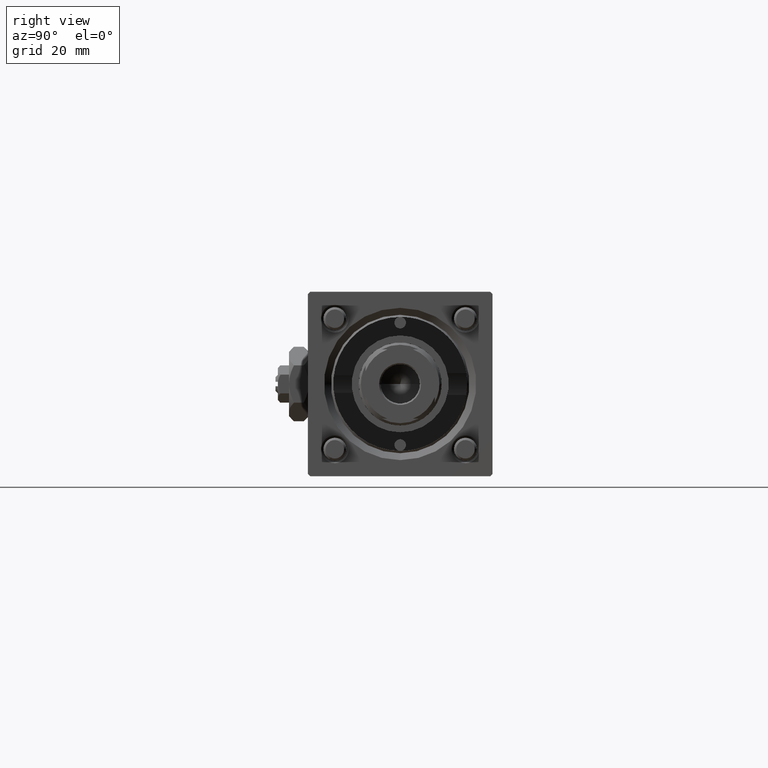
[diagram: clean part render]
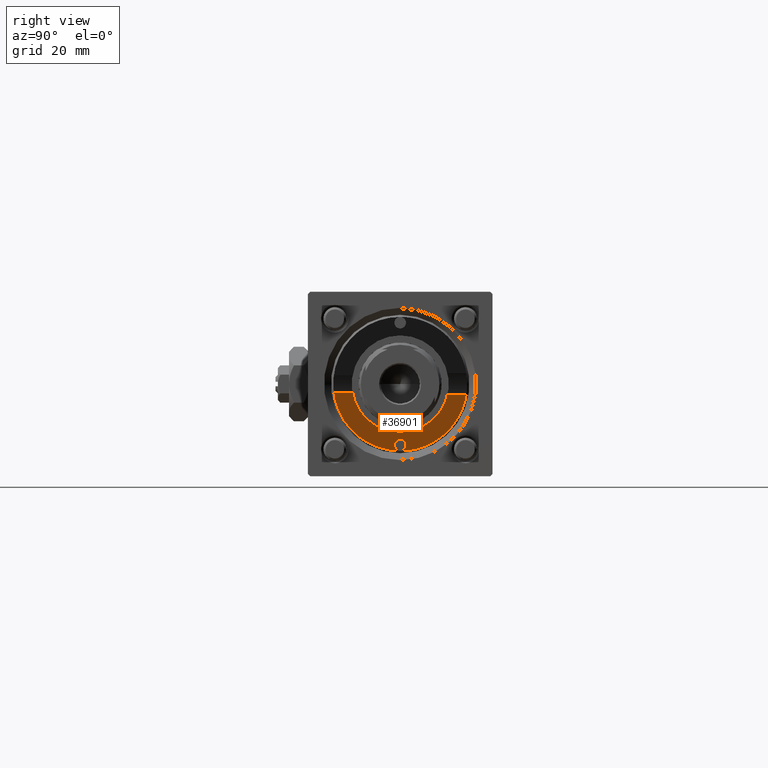
[diagram: same view with one face highlighted and labeled with its STEP entity id]
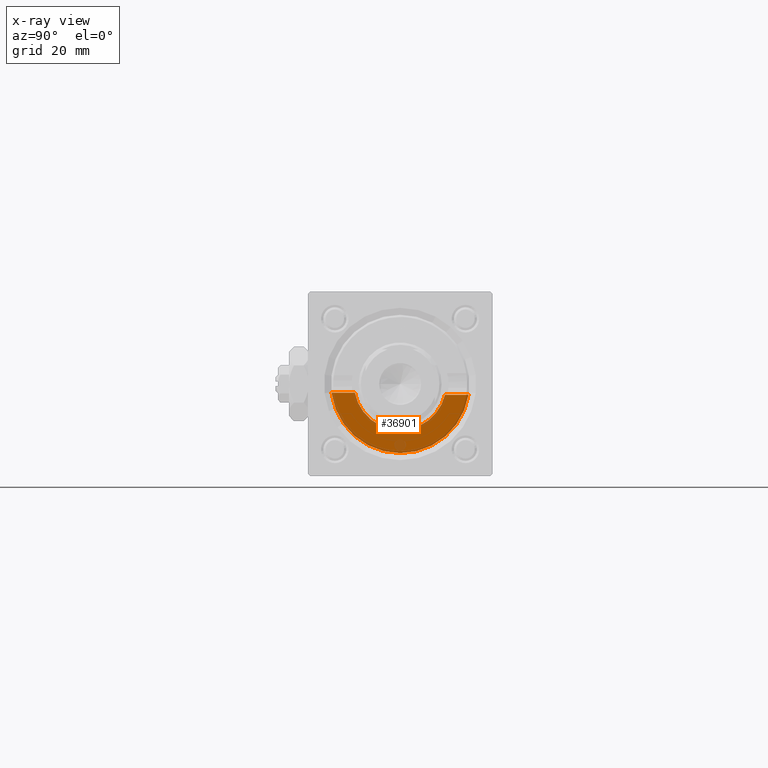
[diagram: x-ray of the same camera — body ghosted, the highlighted face saturated]
A machine part, right view. The second image highlights one B-rep face of the part: STEP entity #36901.
The next image is the same camera in x-ray: the body ghosted, the highlighted face saturated — about 21% of this face is hidden behind the body in this view.
In plain terms, the highlighted planar face has unit normal (1, 0, 0).
Its self-contained STEP definition (entity closure, byte-faithful):
#2122 = CIRCLE ( 'NONE', #49639, 15.00000000000000000 ) ;
#2288 = CARTESIAN_POINT ( 'NONE',  ( 90.30000000000001137, 2.199999999999997069, -2.365755693219425027 ) ) ;
#2880 = LINE ( 'NONE', #2288, #45791 ) ;
#3271 = EDGE_CURVE ( 'NONE', #16774, #41944, #7169, .T. ) ;
#3438 = VECTOR ( 'NONE', #6840, 1000.000000000000000 ) ;
#4565 = EDGE_CURVE ( 'NONE', #54863, #21522, #53232, .T. ) ;
#6481 = AXIS2_PLACEMENT_3D ( 'NONE', #38109, #56251, #52655 ) ;
#6840 = DIRECTION ( 'NONE',  ( 0.000000000000000000, 1.000000000000000000, 8.673617379884037937E-17 ) ) ;
#7005 = DIRECTION ( 'NONE',  ( 1.000000000000000000, 0.000000000000000000, 0.000000000000000000 ) ) ;
#7169 = CIRCLE ( 'NONE', #20484, 9.999999999999998224 ) ;
#7710 = CARTESIAN_POINT ( 'NONE',  ( 90.30000000000001137, 20.00100000000008293, -1.899052395275078631 ) ) ;
#9799 = EDGE_LOOP ( 'NONE', ( #22699, #46492, #41576, #19982, #32456, #21516 ) ) ;
#10385 = DIRECTION ( 'NONE',  ( 0.000000000000000000, 0.000000000000000000, -1.000000000000000000 ) ) ;
#11512 = DIRECTION ( 'NONE',  ( -0.000000000000000000, 1.000000000000000000, -0.000000000000000000 ) ) ;
#13664 = CARTESIAN_POINT ( 'NONE',  ( 90.30000000000001137, 0.000000000000000000, 0.000000000000000000 ) ) ;
#15240 = VERTEX_POINT ( 'NONE', #19941 ) ;
#16517 = AXIS2_PLACEMENT_3D ( 'NONE', #13664, #41336, #10385 ) ;
#16774 = VERTEX_POINT ( 'NONE', #40011 ) ;
#16815 = FACE_OUTER_BOUND ( 'NONE', #9799, .T. ) ;
#19312 = EDGE_CURVE ( 'NONE', #41944, #15240, #2880, .T. ) ;
#19941 = CARTESIAN_POINT ( 'NONE',  ( 90.30000000000001137, 14.81226518801226000, -2.365755693219425027 ) ) ;
#19982 = ORIENTED_EDGE ( 'NONE', *, *, #19312, .F. ) ;
#20484 = AXIS2_PLACEMENT_3D ( 'NONE', #43566, #21255, #34951 ) ;
#21011 = CARTESIAN_POINT ( 'NONE',  ( 90.30000000000001137, 0.000000000000000000, 0.000000000000000000 ) ) ;
#21255 = DIRECTION ( 'NONE',  ( 1.000000000000000000, 0.000000000000000000, 0.000000000000000000 ) ) ;
#21298 = DIRECTION ( 'NONE',  ( 1.000000000000000000, 0.000000000000000000, 0.000000000000000000 ) ) ;
#21516 = ORIENTED_EDGE ( 'NONE', *, *, #30880, .F. ) ;
#21522 = VERTEX_POINT ( 'NONE', #32709 ) ;
#22699 = ORIENTED_EDGE ( 'NONE', *, *, #4565, .F. ) ;
#26559 = EDGE_CURVE ( 'NONE', #54863, #39514, #2122, .T. ) ;
#29840 = CIRCLE ( 'NONE', #16517, 9.999999999999998224 ) ;
#30880 = EDGE_CURVE ( 'NONE', #21522, #16774, #29840, .T. ) ;
#31006 = AXIS2_PLACEMENT_3D ( 'NONE', #34401, #7005, #34987 ) ;
#32456 = ORIENTED_EDGE ( 'NONE', *, *, #3271, .F. ) ;
#32709 = CARTESIAN_POINT ( 'NONE',  ( 90.30000000000001137, -9.818024241159720944, -1.899052395275081295 ) ) ;
#33122 = CARTESIAN_POINT ( 'NONE',  ( 90.30000000000001137, -14.87930105885353349, -1.899052395275081073 ) ) ;
#34401 = CARTESIAN_POINT ( 'NONE',  ( 90.30000000000001137, 0.000000000000000000, 0.000000000000000000 ) ) ;
#34951 = DIRECTION ( 'NONE',  ( 0.000000000000000000, 0.000000000000000000, -1.000000000000000000 ) ) ;
#34987 = DIRECTION ( 'NONE',  ( 0.000000000000000000, 0.000000000000000000, -1.000000000000000000 ) ) ;
#36901 = ADVANCED_FACE ( 'NONE', ( #16815 ), #47491, .T. ) ;
#38109 = CARTESIAN_POINT ( 'NONE',  ( 90.30000000000001137, 0.000000000000000000, 0.000000000000000000 ) ) ;
#39514 = VERTEX_POINT ( 'NONE', #52102 ) ;
#40011 = CARTESIAN_POINT ( 'NONE',  ( 90.30000000000001137, 0.000000000000000000, -9.999999999999998224 ) ) ;
#41336 = DIRECTION ( 'NONE',  ( 1.000000000000000000, 0.000000000000000000, 0.000000000000000000 ) ) ;
#41576 = ORIENTED_EDGE ( 'NONE', *, *, #47871, .T. ) ;
#41944 = VERTEX_POINT ( 'NONE', #57262 ) ;
#43566 = CARTESIAN_POINT ( 'NONE',  ( 90.30000000000001137, 0.000000000000000000, 0.000000000000000000 ) ) ;
#44475 = DIRECTION ( 'NONE',  ( 0.000000000000000000, 0.000000000000000000, -1.000000000000000000 ) ) ;
#45459 = CIRCLE ( 'NONE', #6481, 15.00000000000000000 ) ;
#45791 = VECTOR ( 'NONE', #11512, 1000.000000000000000 ) ;
#46492 = ORIENTED_EDGE ( 'NONE', *, *, #26559, .T. ) ;
#47491 = PLANE ( 'NONE',  #31006 ) ;
#47871 = EDGE_CURVE ( 'NONE', #39514, #15240, #45459, .T. ) ;
#49639 = AXIS2_PLACEMENT_3D ( 'NONE', #21011, #21298, #44475 ) ;
#52102 = CARTESIAN_POINT ( 'NONE',  ( 90.30000000000001137, 0.000000000000000000, -15.00000000000000000 ) ) ;
#52655 = DIRECTION ( 'NONE',  ( 0.000000000000000000, 0.000000000000000000, -1.000000000000000000 ) ) ;
#53232 = LINE ( 'NONE', #7710, #3438 ) ;
#54863 = VERTEX_POINT ( 'NONE', #33122 ) ;
#56251 = DIRECTION ( 'NONE',  ( 1.000000000000000000, 0.000000000000000000, 0.000000000000000000 ) ) ;
#57262 = CARTESIAN_POINT ( 'NONE',  ( 90.30000000000001137, 9.716130917191257765, -2.365755693219425027 ) ) ;